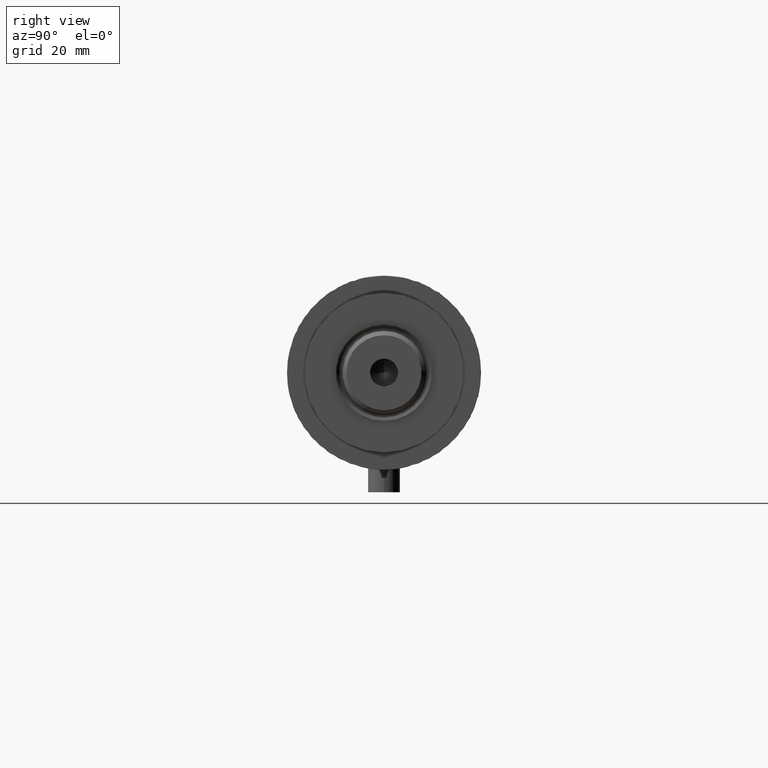
[diagram: clean part render]
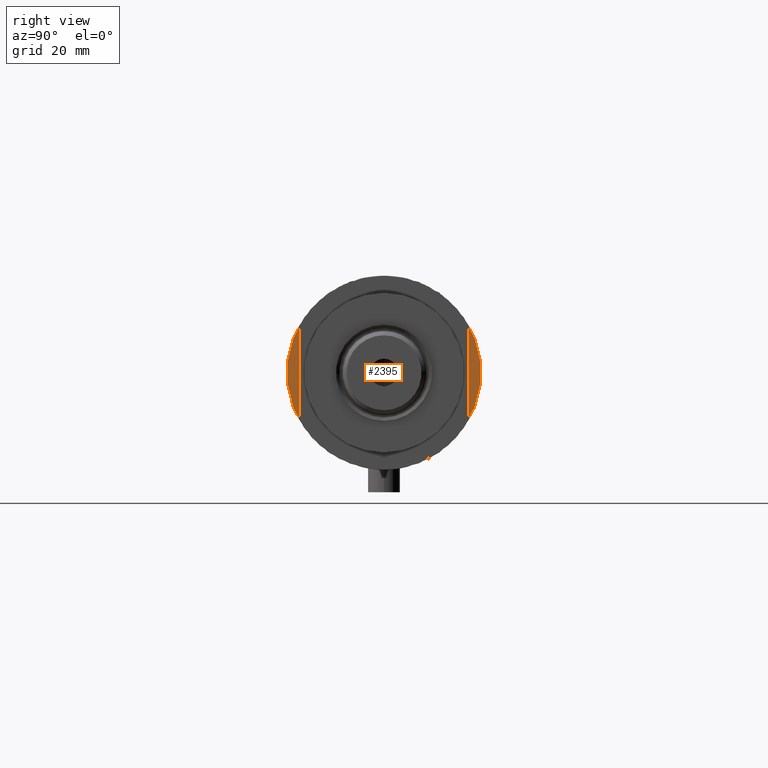
[diagram: same view with one face highlighted and labeled with its STEP entity id]
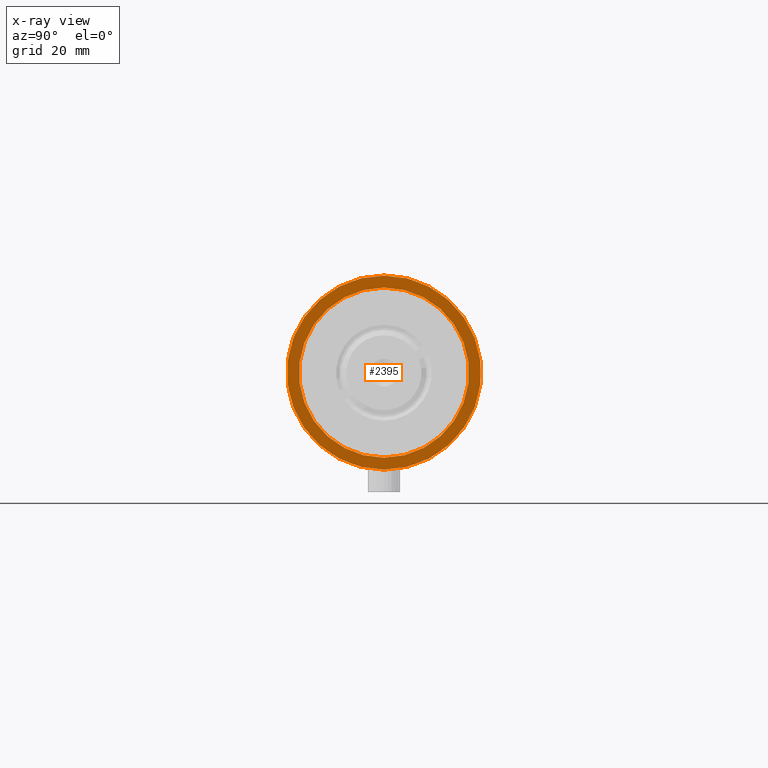
[diagram: x-ray of the same camera — body ghosted, the highlighted face saturated]
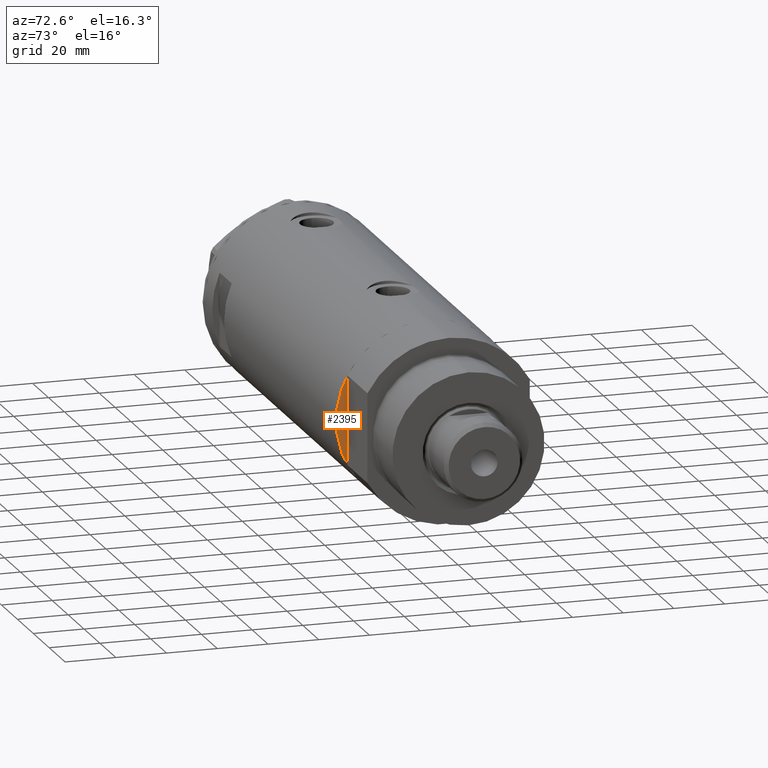
[diagram: same view with one face highlighted and labeled with its STEP entity id]
A machine part, right view. The second image highlights one B-rep face of the part: STEP entity #2395.
The next image is the same camera in x-ray: the body ghosted, the highlighted face saturated — about 0% of this face is hidden behind the body in this view.
A second angle (auxiliary view) of the same face is appended — the face is thin or edge-on in the first view.
In plain terms, the highlighted planar face has unit normal (-1, -0, 0).
Its self-contained STEP definition (entity closure, byte-faithful):
#30 = DIRECTION ( 'NONE',  ( 1.000000000000000000, 0.000000000000000000, 0.000000000000000000 ) ) ;
#57 = FACE_OUTER_BOUND ( 'NONE', #159, .T. ) ;
#159 = EDGE_LOOP ( 'NONE', ( #943, #309 ) ) ;
#167 = DIRECTION ( 'NONE',  ( 0.000000000000000000, 0.000000000000000000, 1.000000000000000000 ) ) ;
#290 = CARTESIAN_POINT ( 'NONE',  ( 32.00000000000000000, 3.918869757271530263E-15, -82.90000000000000568 ) ) ;
#309 = ORIENTED_EDGE ( 'NONE', *, *, #3814, .F. ) ;
#484 = AXIS2_PLACEMENT_3D ( 'NONE', #2738, #2803, #4201 ) ;
#528 = VERTEX_POINT ( 'NONE', #290 ) ;
#847 = EDGE_CURVE ( 'NONE', #3689, #2361, #3664, .T. ) ;
#887 = CARTESIAN_POINT ( 'NONE',  ( 36.50000000000000000, 0.000000000000000000, -82.90000000000000568 ) ) ;
#943 = ORIENTED_EDGE ( 'NONE', *, *, #847, .F. ) ;
#996 = AXIS2_PLACEMENT_3D ( 'NONE', #3969, #167, #1235 ) ;
#1008 = CARTESIAN_POINT ( 'NONE',  ( -32.00000000000000000, 0.000000000000000000, -82.90000000000000568 ) ) ;
#1207 = CIRCLE ( 'NONE', #4457, 36.50000000000000000 ) ;
#1235 = DIRECTION ( 'NONE',  ( 1.000000000000000000, 0.000000000000000000, 0.000000000000000000 ) ) ;
#1440 = PLANE ( 'NONE',  #484 ) ;
#1455 = ORIENTED_EDGE ( 'NONE', *, *, #2297, .F. ) ;
#1460 = DIRECTION ( 'NONE',  ( -1.000000000000000000, 0.000000000000000000, 0.000000000000000000 ) ) ;
#1669 = DIRECTION ( 'NONE',  ( -1.000000000000000000, 0.000000000000000000, 0.000000000000000000 ) ) ;
#1751 = CARTESIAN_POINT ( 'NONE',  ( 0.000000000000000000, 0.000000000000000000, -82.90000000000000568 ) ) ;
#2068 = CARTESIAN_POINT ( 'NONE',  ( 0.000000000000000000, 0.000000000000000000, -82.90000000000000568 ) ) ;
#2183 = EDGE_LOOP ( 'NONE', ( #1455, #4406 ) ) ;
#2237 = EDGE_CURVE ( 'NONE', #528, #3231, #4244, .T. ) ;
#2297 = EDGE_CURVE ( 'NONE', #3231, #528, #4458, .T. ) ;
#2361 = VERTEX_POINT ( 'NONE', #4152 ) ;
#2395 = ADVANCED_FACE ( 'NONE', ( #3077, #57 ), #1440, .F. ) ;
#2489 = AXIS2_PLACEMENT_3D ( 'NONE', #1751, #3119, #1460 ) ;
#2714 = CARTESIAN_POINT ( 'NONE',  ( 0.000000000000000000, 0.000000000000000000, -82.90000000000000568 ) ) ;
#2738 = CARTESIAN_POINT ( 'NONE',  ( 0.000000000000000000, 0.000000000000000000, -82.90000000000000568 ) ) ;
#2803 = DIRECTION ( 'NONE',  ( 0.000000000000000000, 0.000000000000000000, 1.000000000000000000 ) ) ;
#3077 = FACE_BOUND ( 'NONE', #2183, .T. ) ;
#3119 = DIRECTION ( 'NONE',  ( 0.000000000000000000, 0.000000000000000000, -1.000000000000000000 ) ) ;
#3231 = VERTEX_POINT ( 'NONE', #1008 ) ;
#3378 = DIRECTION ( 'NONE',  ( 0.000000000000000000, 0.000000000000000000, -1.000000000000000000 ) ) ;
#3664 = CIRCLE ( 'NONE', #996, 36.50000000000000000 ) ;
#3689 = VERTEX_POINT ( 'NONE', #887 ) ;
#3814 = EDGE_CURVE ( 'NONE', #2361, #3689, #1207, .T. ) ;
#3878 = AXIS2_PLACEMENT_3D ( 'NONE', #2714, #3378, #1669 ) ;
#3886 = DIRECTION ( 'NONE',  ( 0.000000000000000000, 0.000000000000000000, 1.000000000000000000 ) ) ;
#3969 = CARTESIAN_POINT ( 'NONE',  ( 0.000000000000000000, 0.000000000000000000, -82.90000000000000568 ) ) ;
#4152 = CARTESIAN_POINT ( 'NONE',  ( -36.50000000000000000, 4.469960816887838430E-15, -82.90000000000000568 ) ) ;
#4201 = DIRECTION ( 'NONE',  ( 1.000000000000000000, 0.000000000000000000, -0.000000000000000000 ) ) ;
#4244 = CIRCLE ( 'NONE', #3878, 32.00000000000000000 ) ;
#4406 = ORIENTED_EDGE ( 'NONE', *, *, #2237, .F. ) ;
#4457 = AXIS2_PLACEMENT_3D ( 'NONE', #2068, #3886, #30 ) ;
#4458 = CIRCLE ( 'NONE', #2489, 32.00000000000000000 ) ;